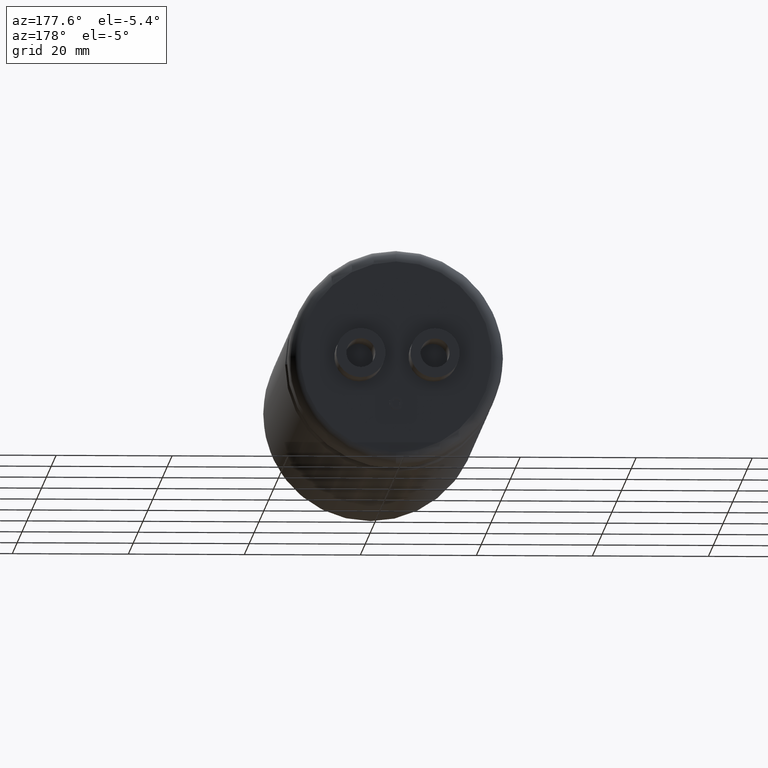
[diagram: clean part render]
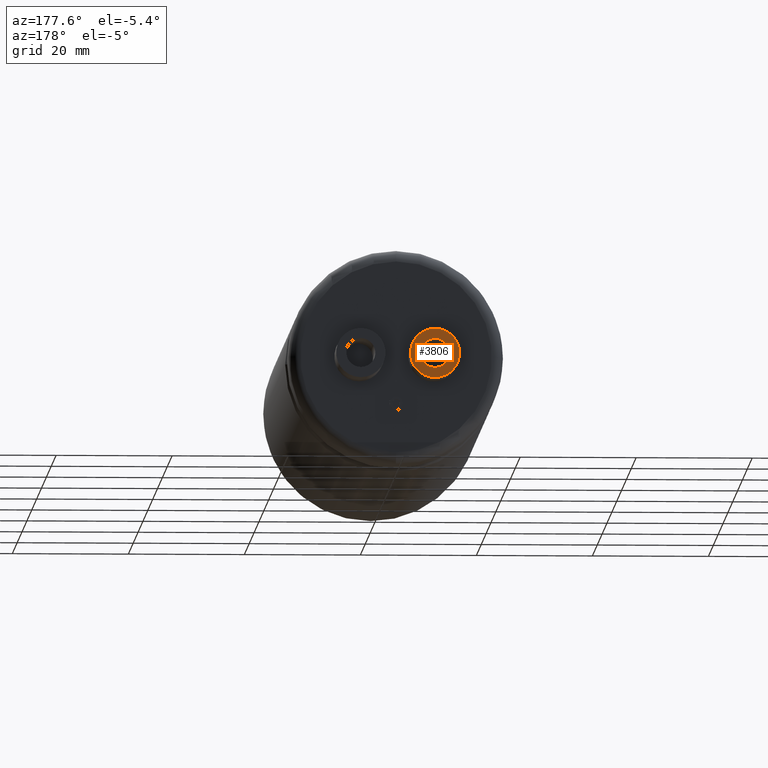
[diagram: same view with one face highlighted and labeled with its STEP entity id]
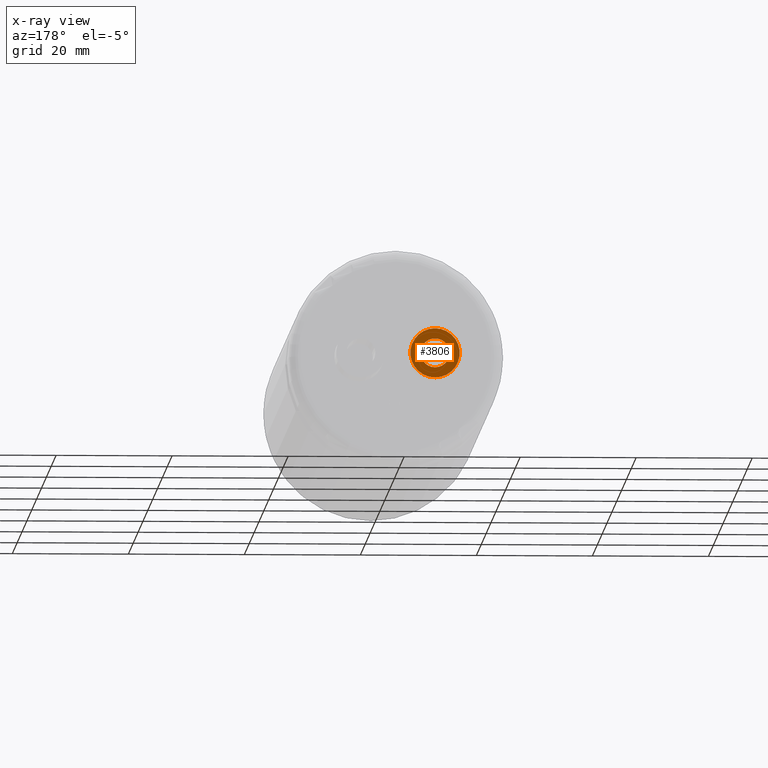
[diagram: x-ray of the same camera — body ghosted, the highlighted face saturated]
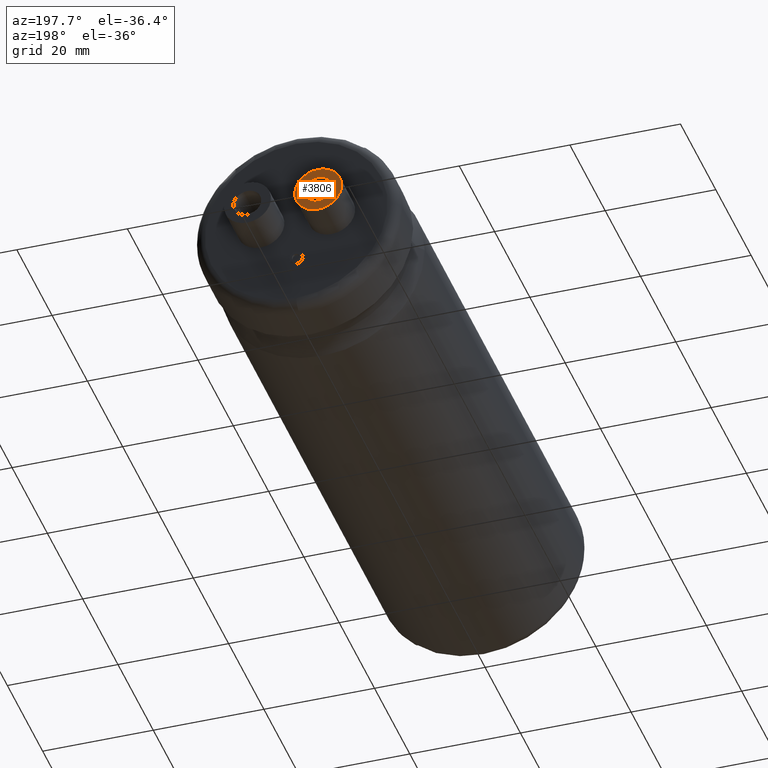
[diagram: same view with one face highlighted and labeled with its STEP entity id]
A machine part, auxiliary view. The second image highlights one B-rep face of the part: STEP entity #3806.
The next image is the same camera in x-ray: the body ghosted, the highlighted face saturated — about 0% of this face is hidden behind the body in this view.
A second angle (auxiliary view) of the same face is appended — the face is thin or edge-on in the first view.
In plain terms, the highlighted planar face has unit normal (0, 1, 0).
Its self-contained STEP definition (entity closure, byte-faithful):
#46 = CIRCLE ( 'NONE', #3127, 2.500000000000000000 ) ;
#70 = EDGE_LOOP ( 'NONE', ( #3090, #2909 ) ) ;
#170 = CARTESIAN_POINT ( 'NONE',  ( -6.400000000000010100, 114.5999999999999900, 6.938893903907228400E-015 ) ) ;
#212 = CARTESIAN_POINT ( 'NONE',  ( -6.400000000000010100, 114.5999999999999900, -2.499999999999992900 ) ) ;
#355 = EDGE_CURVE ( 'NONE', #3205, #3658, #2459, .T. ) ;
#550 = DIRECTION ( 'NONE',  ( 0.0000000000000000000, 1.000000000000000000, 0.0000000000000000000 ) ) ;
#991 = DIRECTION ( 'NONE',  ( 0.0000000000000000000, 1.000000000000000000, 0.0000000000000000000 ) ) ;
#1031 = VERTEX_POINT ( 'NONE', #212 ) ;
#1204 = FACE_BOUND ( 'NONE', #1664, .T. ) ;
#1370 = AXIS2_PLACEMENT_3D ( 'NONE', #2621, #3283, #3909 ) ;
#1467 = EDGE_CURVE ( 'NONE', #3658, #3205, #2481, .T. ) ;
#1533 = PLANE ( 'NONE',  #3002 ) ;
#1547 = CARTESIAN_POINT ( 'NONE',  ( -6.400000000000010100, 114.5999999999999900, 6.938893903907228400E-015 ) ) ;
#1566 = DIRECTION ( 'NONE',  ( 0.0000000000000000000, -0.0000000000000000000, 1.000000000000000000 ) ) ;
#1664 = EDGE_LOOP ( 'NONE', ( #4133, #3288 ) ) ;
#1841 = DIRECTION ( 'NONE',  ( 0.0000000000000000000, 1.000000000000000000, 0.0000000000000000000 ) ) ;
#1975 = DIRECTION ( 'NONE',  ( 0.0000000000000000000, 0.0000000000000000000, 1.000000000000000000 ) ) ;
#2049 = EDGE_CURVE ( 'NONE', #3207, #1031, #2330, .T. ) ;
#2330 = CIRCLE ( 'NONE', #3624, 2.500000000000000000 ) ;
#2393 = CARTESIAN_POINT ( 'NONE',  ( -6.400000000000009200, 114.5999999999999900, 4.250000000000007100 ) ) ;
#2424 = AXIS2_PLACEMENT_3D ( 'NONE', #170, #550, #2470 ) ;
#2459 = CIRCLE ( 'NONE', #1370, 4.250000000000000000 ) ;
#2470 = DIRECTION ( 'NONE',  ( 0.0000000000000000000, 0.0000000000000000000, 1.000000000000000000 ) ) ;
#2481 = CIRCLE ( 'NONE', #2424, 4.250000000000000000 ) ;
#2621 = CARTESIAN_POINT ( 'NONE',  ( -6.400000000000010100, 114.5999999999999900, 6.938893903907228400E-015 ) ) ;
#2865 = EDGE_CURVE ( 'NONE', #1031, #3207, #46, .T. ) ;
#2909 = ORIENTED_EDGE ( 'NONE', *, *, #355, .T. ) ;
#3002 = AXIS2_PLACEMENT_3D ( 'NONE', #1547, #1841, #1566 ) ;
#3090 = ORIENTED_EDGE ( 'NONE', *, *, #1467, .T. ) ;
#3127 = AXIS2_PLACEMENT_3D ( 'NONE', #4138, #4182, #3151 ) ;
#3151 = DIRECTION ( 'NONE',  ( 0.0000000000000000000, 0.0000000000000000000, 1.000000000000000000 ) ) ;
#3205 = VERTEX_POINT ( 'NONE', #2393 ) ;
#3207 = VERTEX_POINT ( 'NONE', #4057 ) ;
#3283 = DIRECTION ( 'NONE',  ( 0.0000000000000000000, 1.000000000000000000, 0.0000000000000000000 ) ) ;
#3288 = ORIENTED_EDGE ( 'NONE', *, *, #2865, .F. ) ;
#3307 = CARTESIAN_POINT ( 'NONE',  ( -6.400000000000010100, 114.5999999999999900, 6.938893903907228400E-015 ) ) ;
#3624 = AXIS2_PLACEMENT_3D ( 'NONE', #3307, #991, #1975 ) ;
#3656 = CARTESIAN_POINT ( 'NONE',  ( -6.400000000000010100, 114.5999999999999900, -4.249999999999993800 ) ) ;
#3658 = VERTEX_POINT ( 'NONE', #3656 ) ;
#3806 = ADVANCED_FACE ( 'NONE', ( #1204, #4131 ), #1533, .T. ) ;
#3909 = DIRECTION ( 'NONE',  ( 0.0000000000000000000, 0.0000000000000000000, 1.000000000000000000 ) ) ;
#4057 = CARTESIAN_POINT ( 'NONE',  ( -6.400000000000010100, 114.5999999999999900, 2.500000000000007100 ) ) ;
#4131 = FACE_OUTER_BOUND ( 'NONE', #70, .T. ) ;
#4133 = ORIENTED_EDGE ( 'NONE', *, *, #2049, .F. ) ;
#4138 = CARTESIAN_POINT ( 'NONE',  ( -6.400000000000010100, 114.5999999999999900, 6.938893903907228400E-015 ) ) ;
#4182 = DIRECTION ( 'NONE',  ( 0.0000000000000000000, 1.000000000000000000, 0.0000000000000000000 ) ) ;